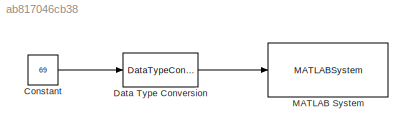
MODEL slx_ab817046cb38
KIND model
CONFIG AbsTol = auto
CONFIG EnableMultiTasking = on
CONFIG FixedStep = auto
CONFIG MaxStep = auto
CONFIG MinStep = auto
CONFIG RelTol = 1e-3
CONFIG SampleTimeConstraint = Unconstrained
CONFIG Solver = FixedStepAuto
CONFIG SolverName = FixedStepAuto
CONFIG StartTime = 0.0
CONFIG StopTime = 10.0
BLOCK [Constant] Constant
  Value = 69
BLOCK [DataTypeConversion] Data Type Conversion
  OutDataTypeStr = uint8
  RndMeth = Floor
  SaturateOnIntegerOverflow = off
BLOCK [MATLABSystem] MATLAB System
  Divisor = 375
  MaskDisplay = disp('PWM Write (18)');\nport_label('input',1,'u');
  MaskType = PwmOutput
  Mode = 0
  Pin = 18
  Ports = [1]
  Range = 1024
  System = PwmOutput
LINE Constant:1 -> Data Type Conversion:1
LINE Data Type Conversion:1 -> MATLAB System:1
